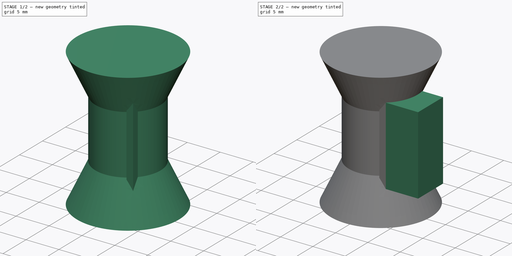
[diagram: build sequence overview — one tinted view per stage of 2, left to right]
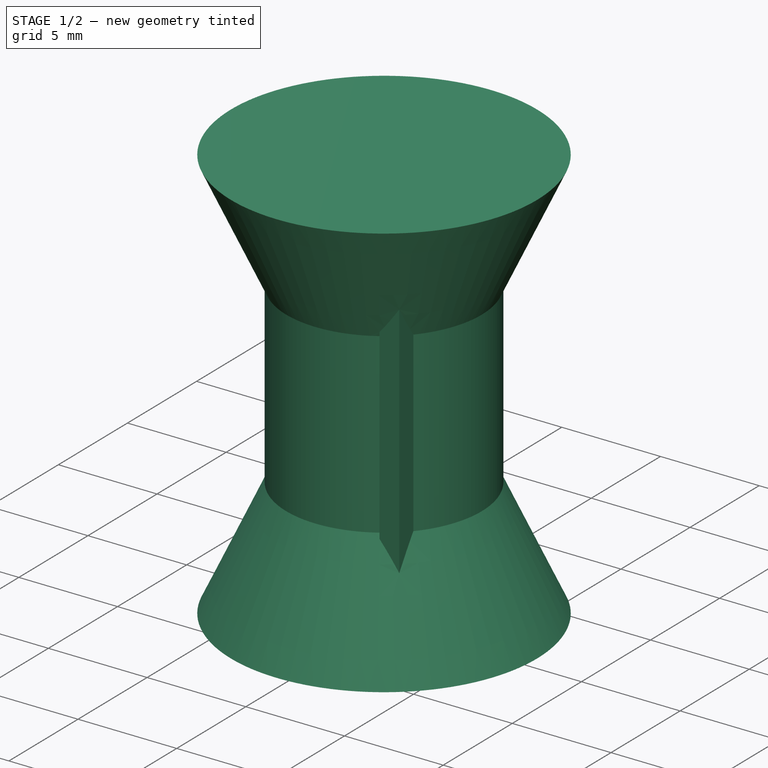
[diagram: stage 1 of 2 — iso view after this stage's code; geometry added in this stage tinted green]
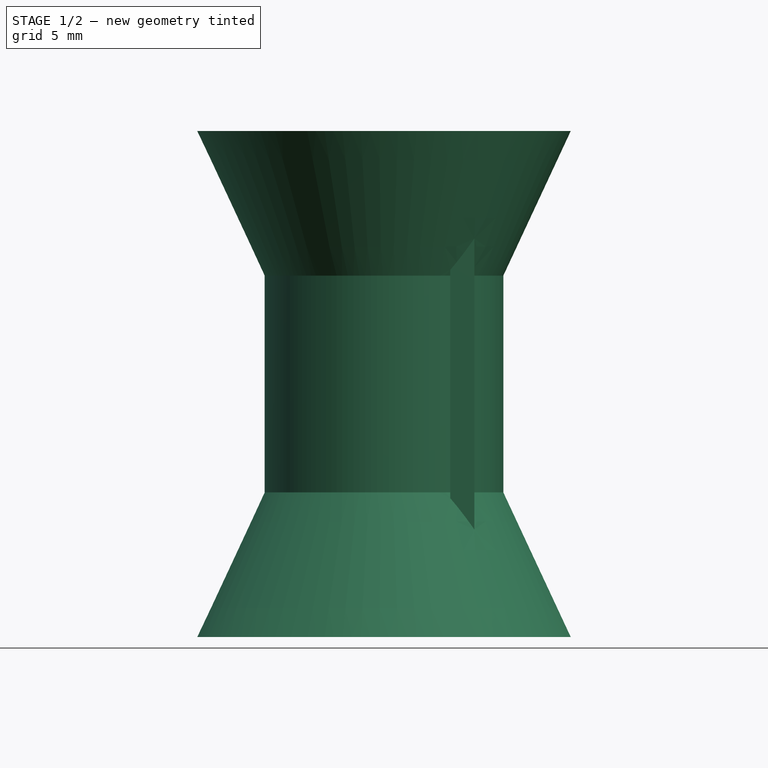
[diagram: stage 1 of 2 — front view after this stage's code; geometry added in this stage tinted green]
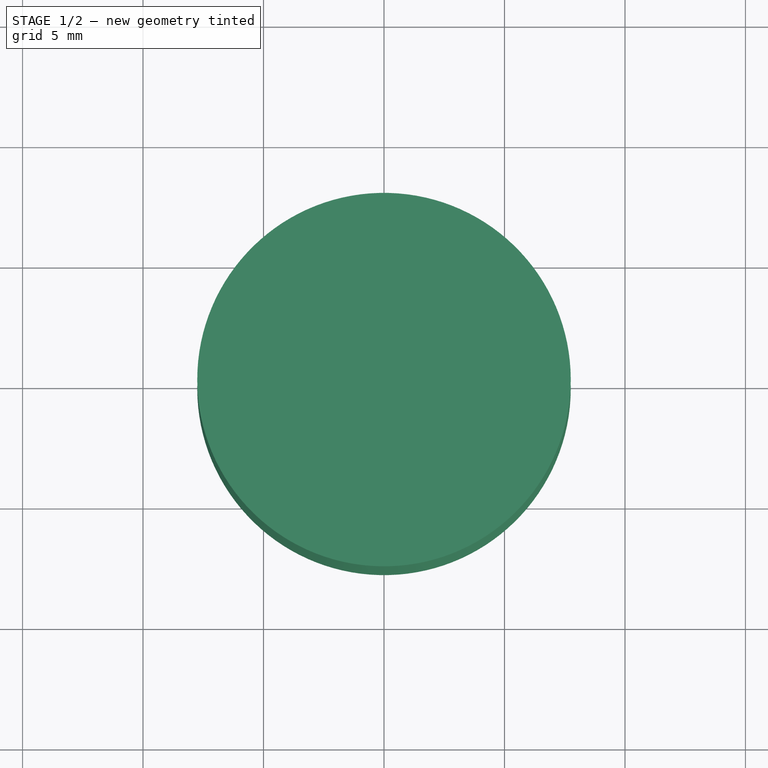
[diagram: stage 1 of 2 — top view after this stage's code; geometry added in this stage tinted green]
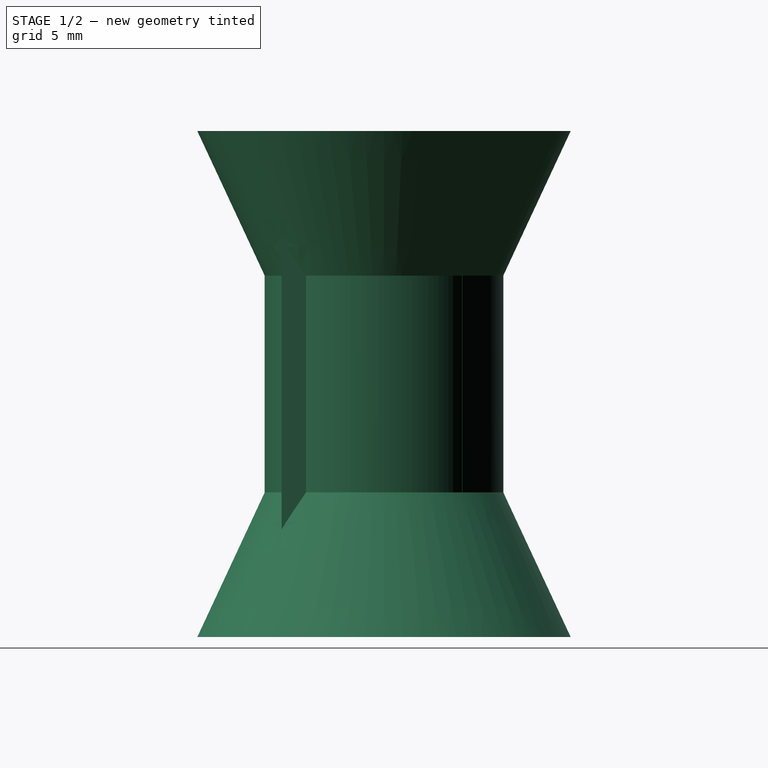
[diagram: stage 1 of 2 — right view after this stage's code; geometry added in this stage tinted green]
FCSTD DOCUMENT  (FreeCAD 0.16R6712 (Git))
Label: paddle_hindge_bool
License: All rights reserved
LicenseURL: http://en.wikipedia.org/wiki/All_rights_reserved
objects: Sketcher::SketchObject×3, PartDesign::Pad×2, PartDesign::Revolution×1
note: 9 computed .brp shape members not serialized (recipe doc carries the construction recipe); baked Part::Feature solids carry a one-line shape summary decoded from their .brp

FEATURE [Sketcher::SketchObject] Sketch
  Placement = pos=(0,0,0) rot=(1,0,0;1.5708rad)
  sketch-geometry (8):
    g0: LineSegment StartX=0 StartY=0 StartZ=0 EndX=7.75 EndY=0 EndZ=0
    g1: LineSegment StartX=7.75 StartY=0 StartZ=0 EndX=4.95215 EndY=6 EndZ=0
    g2: LineSegment StartX=4.95215 StartY=6 StartZ=0 EndX=4.95215 EndY=15 EndZ=0
    g3: LineSegment StartX=4.95215 StartY=15 StartZ=0 EndX=7.75 EndY=21 EndZ=0
    g4: LineSegment StartX=7.75 StartY=21 StartZ=0 EndX=0 EndY=21 EndZ=0
    g5: LineSegment [constr] StartX=0 StartY=15 StartZ=0 EndX=4.95215 EndY=15 EndZ=0
    g6: LineSegment [constr] StartX=4.95215 StartY=6 StartZ=0 EndX=0 EndY=6 EndZ=0
    g7: LineSegment StartX=0 StartY=21 StartZ=0 EndX=0 EndY=0 EndZ=0
  constraints (24):
    c: Horizontal(g0)
    c: Coincident(g0,g1)
    c: Coincident(g1,g2)
    c: Vertical(g2)
    c: Coincident(g2,g3)
    c: Coincident(g3,g4)
    c: Horizontal(g4)
    c: Equal(g0,g4)
    c: Coincident(g5,g2)
    c: Horizontal(g5)
    c: Coincident(g6,g1)
    c: Equal(g1,g3)
    c: Coincident(g7,g4)
    c: Vertical(g7)
    c: Coincident(g0,g7)
    c: Coincident(g0,g-1)
    c: Equal(g6,g5)
    c: Horizontal(g6)
    c: PointOnObject(g5,g7)
    c: Angle(g1,g0) = 1.13446
    c: DistanceX(g0,g0) = 7.75
    c: DistanceY(g7,g7) = 21
    c: DistanceY(g2,g2) = 9
    c: DistanceX(g5,g5) = 4.95215
FEATURE [PartDesign::Revolution] Revolution
  Angle = 360
  Axis = (0,0,1)
  Base = (0,0,0)
  Placement = pos=(0,0,0) rot=(1,0,0;1.5708rad)
  ReferenceAxis = -> Sketch [V_Axis]
  Reversed = true
  Sketch = -> Sketch
FEATURE [Sketcher::SketchObject] Sketch001
  Placement = pos=(0,0,21) rot=(0,0,1;3.14159rad)
  Support = -> Revolution [Face5]
  sketch-geometry (8):
    g0: LineSegment StartX=-2.75 StartY=4.25 StartZ=0 EndX=-3.75 EndY=4.25 EndZ=0
    g1: LineSegment StartX=-3.75 StartY=4.25 StartZ=0 EndX=-3.75 EndY=-3.25 EndZ=0
    g2: LineSegment StartX=-3.75 StartY=-3.25 StartZ=0 EndX=-2.75 EndY=-3.25 EndZ=0
    g3: LineSegment StartX=-2.75 StartY=-3.25 StartZ=0 EndX=-2.75 EndY=4.25 EndZ=0
    g4: LineSegment [constr] StartX=-2.75 StartY=4.25 StartZ=0 EndX=-3.25 EndY=0.5 EndZ=0
    g5: LineSegment [constr] StartX=-3.75 StartY=4.25 StartZ=0 EndX=-3.25 EndY=0.5 EndZ=0
    g6: LineSegment [constr] StartX=-3.75 StartY=-3.25 StartZ=0 EndX=-3.25 EndY=0.5 EndZ=0
    g7: LineSegment [constr] StartX=-2.75 StartY=-3.25 StartZ=0 EndX=-3.25 EndY=0.5 EndZ=0
  constraints (22):
    c: Coincident(g0,g1)
    c: Coincident(g1,g2)
    c: Coincident(g2,g3)
    c: Coincident(g3,g0)
    c: Horizontal(g0)
    c: Horizontal(g2)
    c: Vertical(g1)
    c: Vertical(g3)
    c: DistanceX(g2,g-1) = 2.75
    c: DistanceX(g2,g2) = 1
    c: DistanceY(g1,g1) = 7.5
    c: Coincident(g4,g0)
    c: Coincident(g5,g0)
    c: Coincident(g5,g4)
    c: Coincident(g6,g1)
    c: Coincident(g7,g2)
    c: Coincident(g4,g6)
    c: Coincident(g4,g7)
    c: Equal(g4,g5)
    c: Equal(g5,g7)
    c: Equal(g7,g6)
    c: DistanceY(g-1,g4) = 0.5
FEATURE [PartDesign::Pad] Pad
  Length = 20
  Length2 = 100
  Placement = pos=(0,0,0) rot=(1,0,0;1.5708rad)
  Reversed = true
  Sketch = -> Sketch001
  Type = 0
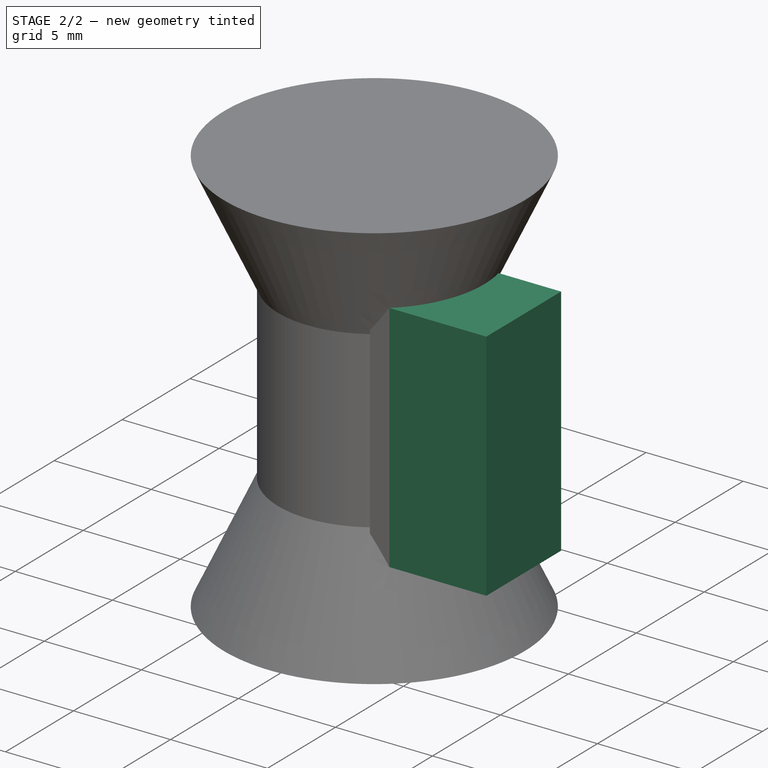
[diagram: stage 2 of 2 — iso view after this stage's code; geometry added in this stage tinted green]
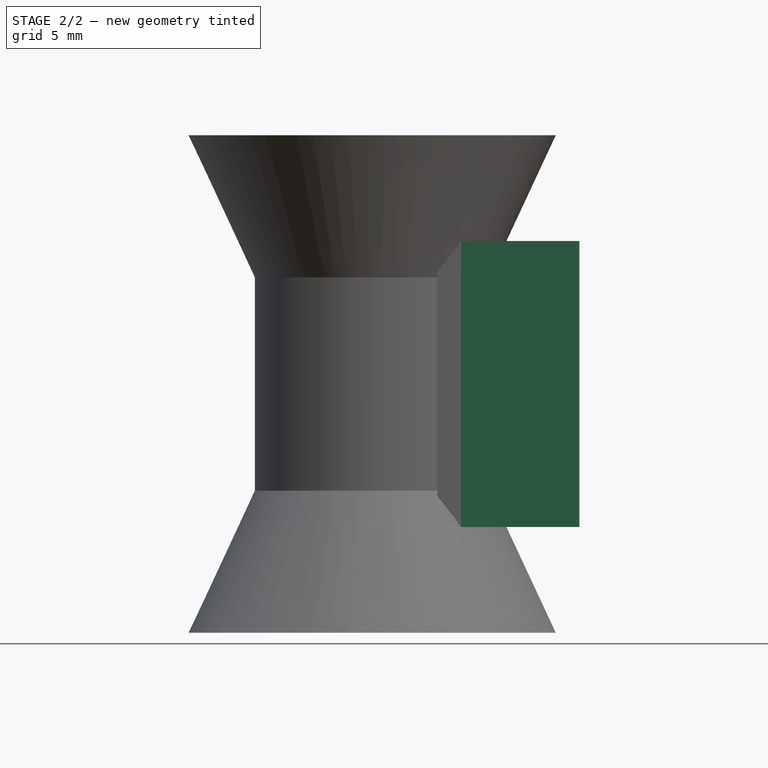
[diagram: stage 2 of 2 — front view after this stage's code; geometry added in this stage tinted green]
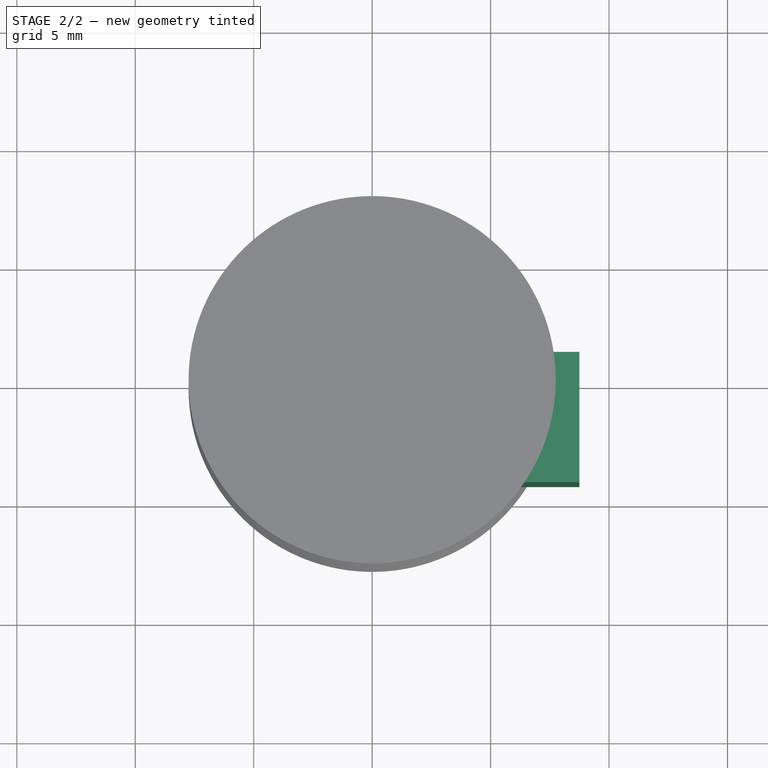
[diagram: stage 2 of 2 — top view after this stage's code; geometry added in this stage tinted green]
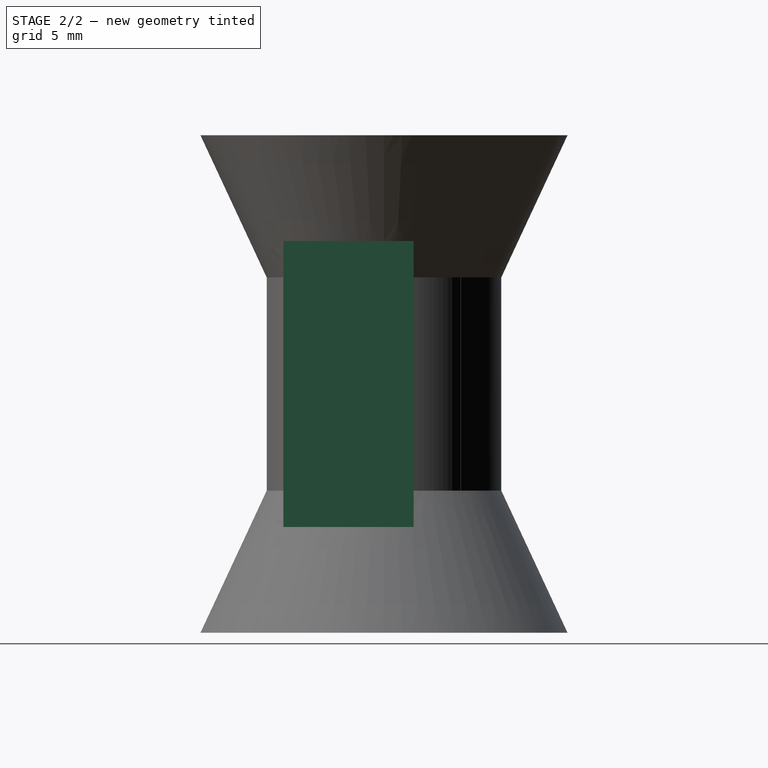
[diagram: stage 2 of 2 — right view after this stage's code; geometry added in this stage tinted green]
FEATURE [Sketcher::SketchObject] Sketch002
  ExternalGeometry = -> [Pad]
  Placement = pos=(0,-4.25,0) rot=(1,0,0;1.5708rad)
  Support = -> Pad [Face5]
  sketch-geometry (4):
    g0: LineSegment StartX=2.75 StartY=16.5349 StartZ=0 EndX=8.75 EndY=16.5349 EndZ=0
    g1: LineSegment StartX=8.75 StartY=16.5349 StartZ=0 EndX=8.75 EndY=4.46509 EndZ=0
    g2: LineSegment StartX=8.75 StartY=4.46509 StartZ=0 EndX=2.75 EndY=4.46509 EndZ=0
    g3: LineSegment StartX=2.75 StartY=4.46509 StartZ=0 EndX=2.75 EndY=16.5349 EndZ=0
  constraints (12):
    c: Coincident(g0,g1)
    c: Coincident(g1,g2)
    c: Coincident(g2,g3)
    c: Coincident(g3,g0)
    c: Horizontal(g0)
    c: Horizontal(g2)
    c: Vertical(g1)
    c: Vertical(g3)
    c: PointOnObject(g-4,g2)
    c: PointOnObject(g-4,g0)
    c: PointOnObject(g0,g-3)
    c: DistanceX(g0,g0) = 6
FEATURE [PartDesign::Pad] Pad001
  Length = 5.5
  Length2 = 100
  Placement = pos=(0,0,0) rot=(1,0,0;1.5708rad)
  Reversed = true
  Sketch = -> Sketch002
  Type = 0
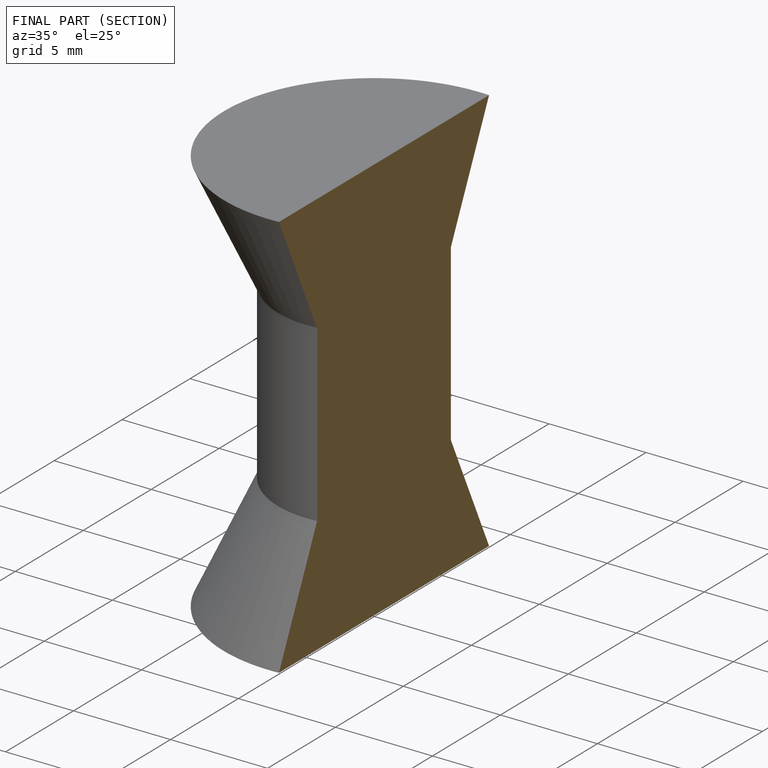
[diagram: finished part — half-section view (interior)]
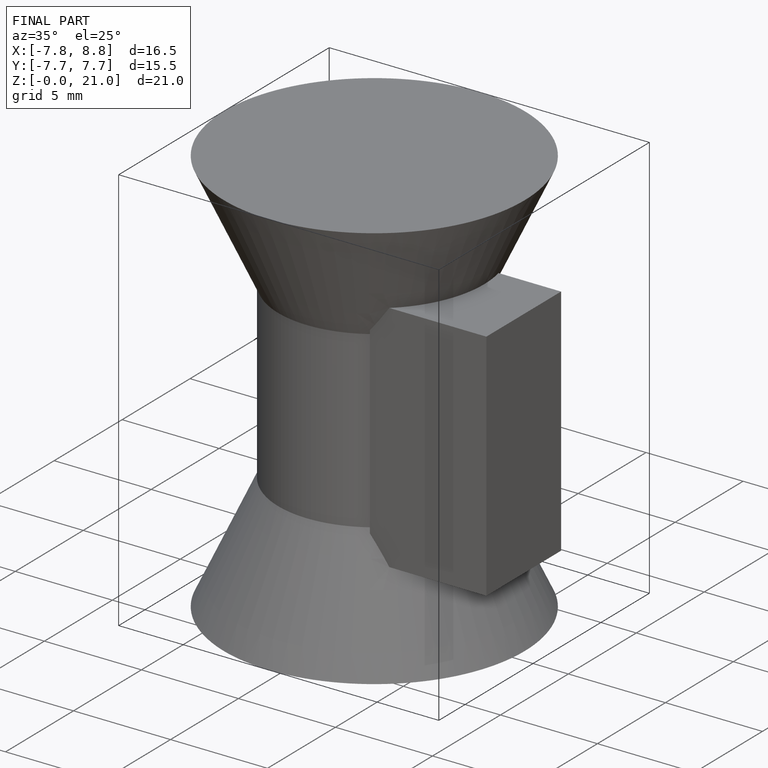
[diagram: finished part — iso view with bounding-box wireframe]
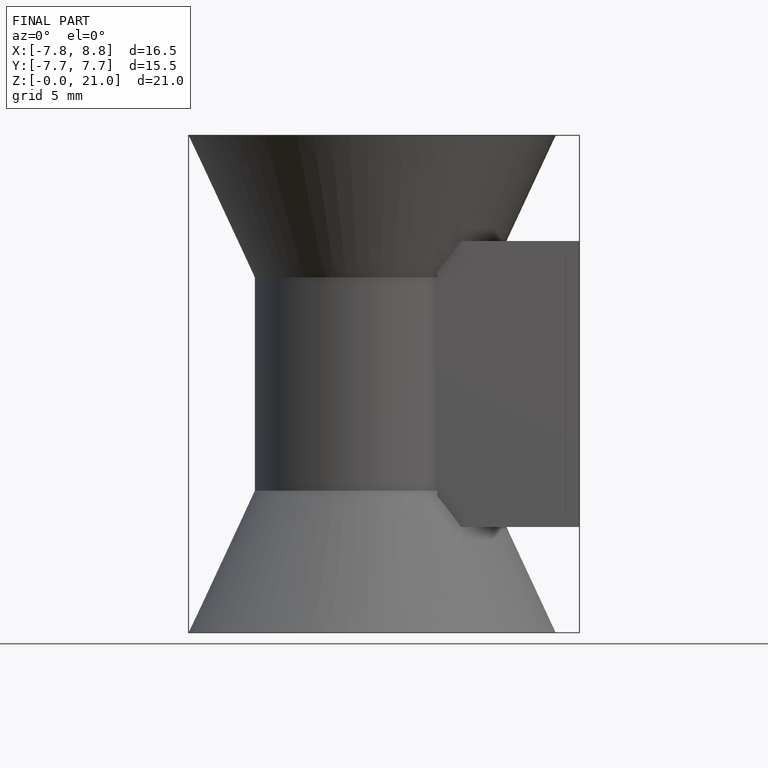
[diagram: finished part — front view with bounding-box wireframe]
